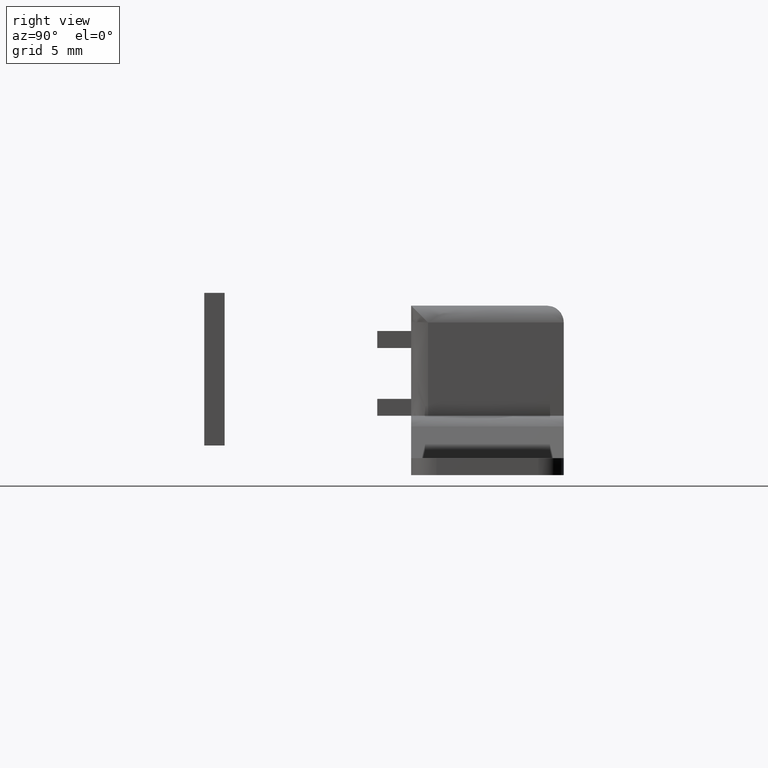
[diagram: clean part render]
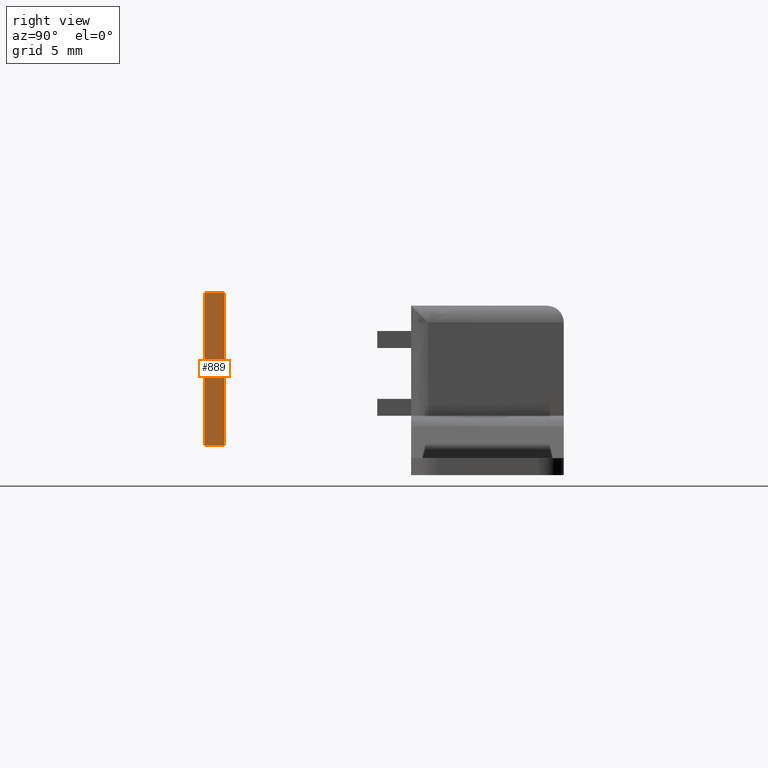
[diagram: same view with one face highlighted and labeled with its STEP entity id]
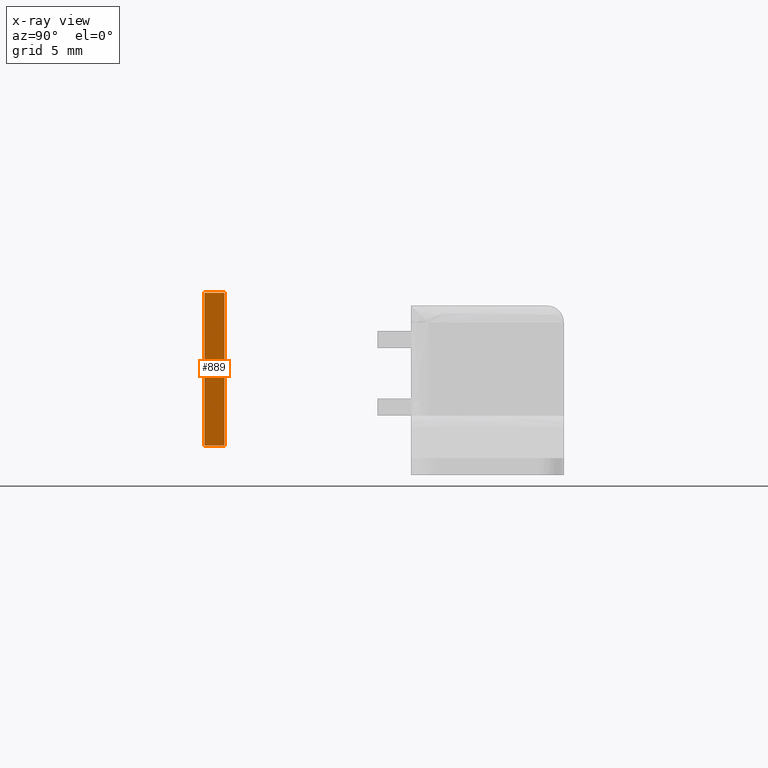
[diagram: x-ray of the same camera — body ghosted, the highlighted face saturated]
A machine part, right view. The second image highlights one B-rep face of the part: STEP entity #889.
The next image is the same camera in x-ray: the body ghosted, the highlighted face saturated — about 0% of this face is hidden behind the body in this view.
In plain terms, the highlighted face is a freeform B-spline surface patch.
Its self-contained STEP definition (entity closure, byte-faithful):
#747=CARTESIAN_POINT('',(12.0,-12.199975999999999,1.749999999999900));
#748=VERTEX_POINT('',#747);
#749=CARTESIAN_POINT('',(12.0,-12.199975999999999,10.750000000000000));
#750=VERTEX_POINT('',#749);
#751=CARTESIAN_POINT('',(12.0,-12.199975999999999,1.749999999999900));
#752=CARTESIAN_POINT('',(12.0,-12.199975999999999,10.750000000000000));
#753=QUASI_UNIFORM_CURVE('',1,(#751,#752),.UNSPECIFIED.,.F.,.U.);
#754=EDGE_CURVE('',#748,#750,#753,.T.);
#789=CARTESIAN_POINT('',(12.0,-11.000000000000121,1.749999999999900));
#790=VERTEX_POINT('',#789);
#791=CARTESIAN_POINT('',(12.0,-11.000000000000121,10.750000000000000));
#792=VERTEX_POINT('',#791);
#793=CARTESIAN_POINT('',(12.0,-11.000000000000121,1.749999999999900));
#794=CARTESIAN_POINT('',(12.0,-11.000000000000121,10.750000000000000));
#795=QUASI_UNIFORM_CURVE('',1,(#793,#794),.UNSPECIFIED.,.F.,.U.);
#796=EDGE_CURVE('',#790,#792,#795,.T.);
#838=CARTESIAN_POINT('',(12.0,-11.000000000000121,1.749999999999900));
#839=CARTESIAN_POINT('',(12.0,-12.199975999999999,1.749999999999900));
#840=QUASI_UNIFORM_CURVE('',1,(#838,#839),.UNSPECIFIED.,.F.,.U.);
#841=EDGE_CURVE('',#790,#748,#840,.T.);
#868=CARTESIAN_POINT('',(12.0,-11.000000000000121,10.750000000000000));
#869=CARTESIAN_POINT('',(12.0,-12.199975999999999,10.750000000000000));
#870=QUASI_UNIFORM_CURVE('',1,(#868,#869),.UNSPECIFIED.,.F.,.U.);
#871=EDGE_CURVE('',#792,#750,#870,.T.);
#878=CARTESIAN_POINT('',(12.0,-12.259914765080660,11.199549982556260));
#879=CARTESIAN_POINT('',(12.0,-12.259914765080660,1.300449776044830));
#880=CARTESIAN_POINT('',(12.0,-10.940061170547731,11.199549982556260));
#881=CARTESIAN_POINT('',(12.0,-10.940061170547731,1.300449776044830));
#882=B_SPLINE_SURFACE_WITH_KNOTS('',1,1,((#878,#880),(#879,#881)),.UNSPECIFIED.,.F.,.F.,.U.,(2,2),(2,2),(0.0,9.899100206511427),(0.041708358416706,0.958291686286777),.UNSPECIFIED.);
#883=ORIENTED_EDGE('',*,*,#754,.F.);
#884=ORIENTED_EDGE('',*,*,#841,.F.);
#885=ORIENTED_EDGE('',*,*,#796,.T.);
#886=ORIENTED_EDGE('',*,*,#871,.T.);
#887=EDGE_LOOP('',(#883,#884,#885,#886));
#888=FACE_OUTER_BOUND('',#887,.T.);
#889=ADVANCED_FACE('',(#888),#882,.T.);